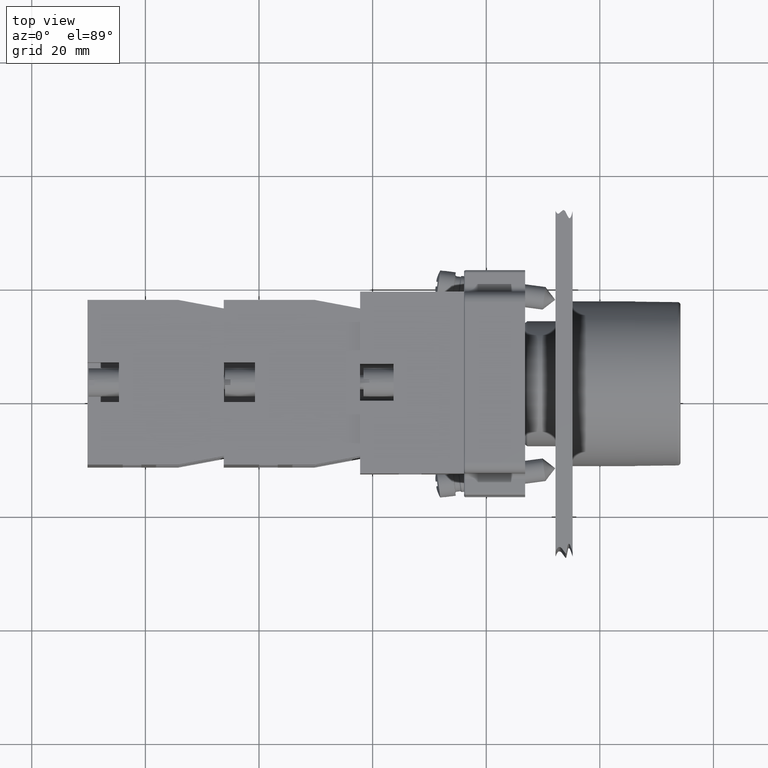
[diagram: clean part render]
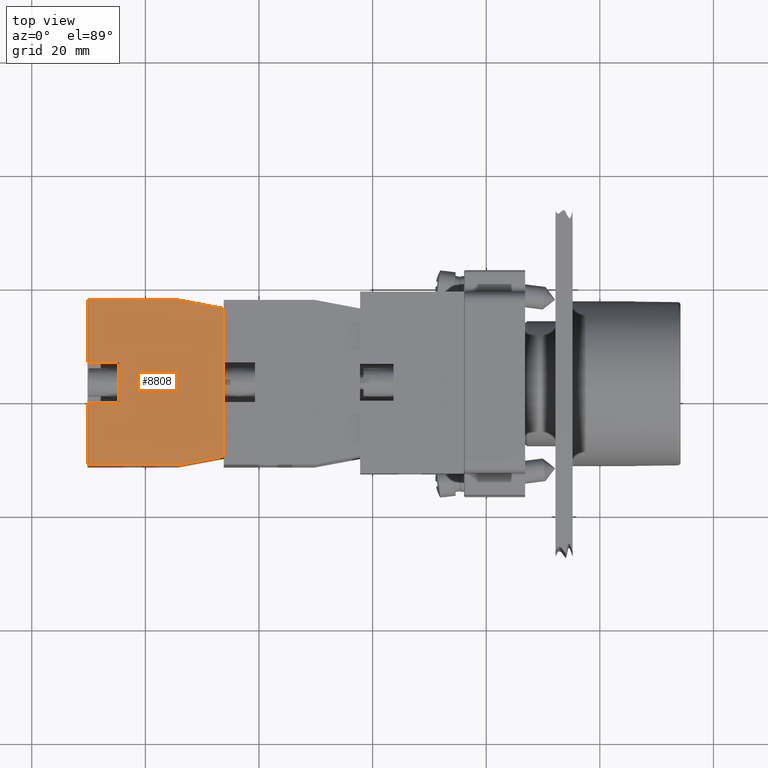
[diagram: same view with one face highlighted and labeled with its STEP entity id]
A machine part, top view. The second image highlights one B-rep face of the part: STEP entity #8808.
In plain terms, the highlighted planar face has unit normal (-0, 0, 1).
Its self-contained STEP definition (entity closure, byte-faithful):
#7111=CARTESIAN_POINT('',(-44.936741828918457,7.797073323279626,14.699999999999999));
#7112=VERTEX_POINT('',#7111);
#7119=CARTESIAN_POINT('',(-44.936741828918471,23.797073323279623,14.699999999999999));
#7120=VERTEX_POINT('',#7119);
#7121=CARTESIAN_POINT('',(-44.936741828918457,7.797073323279626,14.699999999999999));
#7122=DIRECTION('',(0.0,1.0,0.0));
#7123=VECTOR('',#7122,15.999999999999996);
#7124=LINE('',#7121,#7123);
#7125=EDGE_CURVE('',#7112,#7120,#7124,.T.);
#7192=CARTESIAN_POINT('',(-43.436741828918457,-0.202926676720380,14.699999999999999));
#7193=VERTEX_POINT('',#7192);
#7200=CARTESIAN_POINT('',(-43.436741828918457,-0.202926676720380,14.699999999999999));
#7201=DIRECTION('',(-0.184288535050185,0.982872186934322,0.0));
#7202=VECTOR('',#7201,8.139410298049860);
#7203=LINE('',#7200,#7202);
#7204=EDGE_CURVE('',#7193,#7112,#7203,.T.);
#7343=CARTESIAN_POINT('',(-17.436741828918457,-0.202926676720377,14.699999999999999));
#7344=VERTEX_POINT('',#7343);
#7351=CARTESIAN_POINT('',(-17.436741828918457,-0.202926676720377,14.699999999999999));
#7352=DIRECTION('',(-1.0,0.0,0.0));
#7353=VECTOR('',#7352,26.0);
#7354=LINE('',#7351,#7353);
#7355=EDGE_CURVE('',#7344,#7193,#7354,.T.);
#7436=CARTESIAN_POINT('',(-15.936741828918466,7.797073323279626,14.699999999999999));
#7437=VERTEX_POINT('',#7436);
#7444=CARTESIAN_POINT('',(-15.936741828918466,7.797073323279626,14.699999999999999));
#7445=DIRECTION('',(-0.184288535050184,-0.982872186934322,0.0));
#7446=VECTOR('',#7445,8.139410298049855);
#7447=LINE('',#7444,#7446);
#7448=EDGE_CURVE('',#7437,#7344,#7447,.T.);
#8543=CARTESIAN_POINT('',(-26.936741828918468,18.297073323279626,14.699999999999999));
#8544=VERTEX_POINT('',#8543);
#8553=CARTESIAN_POINT('',(-26.936741828918468,23.797073323279626,14.699999999999999));
#8554=VERTEX_POINT('',#8553);
#8555=CARTESIAN_POINT('',(-26.936741828918468,23.797073323279626,14.699999999999999));
#8556=DIRECTION('',(0.0,-1.0,0.0));
#8557=VECTOR('',#8556,5.500000000000000);
#8558=LINE('',#8555,#8557);
#8559=EDGE_CURVE('',#8554,#8544,#8558,.T.);
#8614=CARTESIAN_POINT('',(-33.936741828918464,18.297073323279619,14.699999999999999));
#8615=VERTEX_POINT('',#8614);
#8623=CARTESIAN_POINT('',(-33.936741828918464,23.797073323279623,14.699999999999999));
#8624=VERTEX_POINT('',#8623);
#8631=CARTESIAN_POINT('',(-33.936741828918464,18.297073323279619,14.699999999999999));
#8632=DIRECTION('',(0.0,1.0,0.0));
#8633=VECTOR('',#8632,5.500000000000004);
#8634=LINE('',#8631,#8633);
#8635=EDGE_CURVE('',#8615,#8624,#8634,.T.);
#8648=CARTESIAN_POINT('',(-26.936741828918468,18.297073323279626,14.699999999999999));
#8649=DIRECTION('',(-1.0,0.0,0.0));
#8650=VECTOR('',#8649,6.999999999999996);
#8651=LINE('',#8648,#8650);
#8652=EDGE_CURVE('',#8544,#8615,#8651,.T.);
#8668=CARTESIAN_POINT('',(-15.936741828918466,23.797073323279626,14.699999999999999));
#8669=VERTEX_POINT('',#8668);
#8670=CARTESIAN_POINT('',(-26.936741828918468,23.797073323279626,14.699999999999999));
#8671=DIRECTION('',(1.0,0.0,0.0));
#8672=VECTOR('',#8671,11.000000000000002);
#8673=LINE('',#8670,#8672);
#8674=EDGE_CURVE('',#8554,#8669,#8673,.T.);
#8691=CARTESIAN_POINT('',(-44.936741828918471,23.797073323279623,14.699999999999999));
#8692=DIRECTION('',(1.0,0.0,0.0));
#8693=VECTOR('',#8692,11.000000000000007);
#8694=LINE('',#8691,#8693);
#8695=EDGE_CURVE('',#7120,#8624,#8694,.T.);
#8739=CARTESIAN_POINT('',(-15.936741828918466,23.797073323279626,14.699999999999999));
#8740=DIRECTION('',(0.0,-1.0,0.0));
#8741=VECTOR('',#8740,16.0);
#8742=LINE('',#8739,#8741);
#8743=EDGE_CURVE('',#8669,#7437,#8742,.T.);
#8791=CARTESIAN_POINT('',(-30.436741828918457,12.124046801833057,14.699999999999999));
#8792=DIRECTION('',(0.0,0.0,1.0));
#8793=DIRECTION('',(1.0,0.0,0.0));
#8794=AXIS2_PLACEMENT_3D('',#8791,#8792,#8793);
#8795=PLANE('',#8794);
#8796=ORIENTED_EDGE('',*,*,#8635,.T.);
#8797=ORIENTED_EDGE('',*,*,#8695,.F.);
#8798=ORIENTED_EDGE('',*,*,#7125,.F.);
#8799=ORIENTED_EDGE('',*,*,#7204,.F.);
#8800=ORIENTED_EDGE('',*,*,#7355,.F.);
#8801=ORIENTED_EDGE('',*,*,#7448,.F.);
#8802=ORIENTED_EDGE('',*,*,#8743,.F.);
#8803=ORIENTED_EDGE('',*,*,#8674,.F.);
#8804=ORIENTED_EDGE('',*,*,#8559,.T.);
#8805=ORIENTED_EDGE('',*,*,#8652,.T.);
#8806=EDGE_LOOP('',(#8796,#8797,#8798,#8799,#8800,#8801,#8802,#8803,#8804,#8805));
#8807=FACE_OUTER_BOUND('',#8806,.T.);
#8808=ADVANCED_FACE('',(#8807),#8795,.T.);